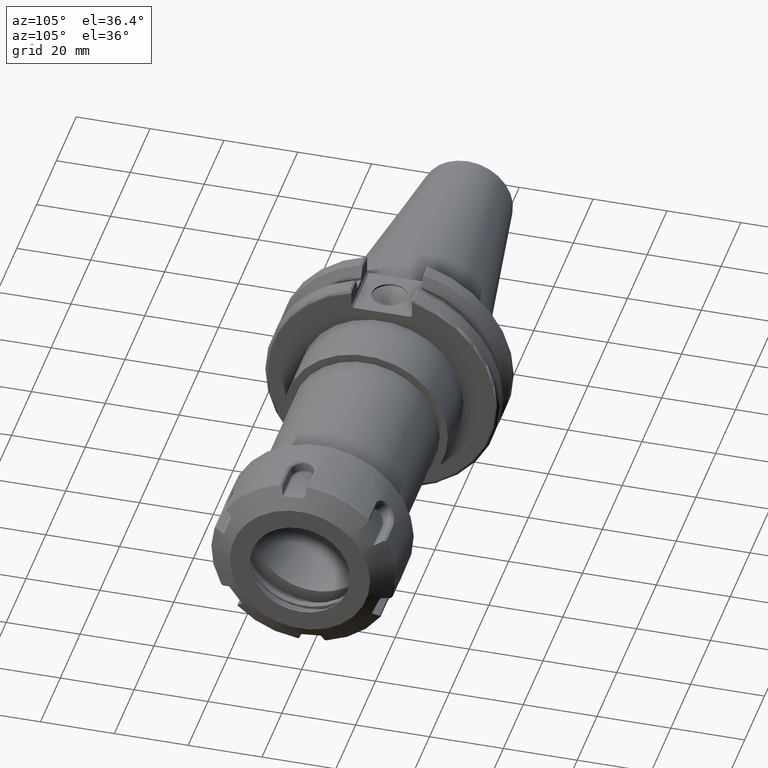
[diagram: clean part render]
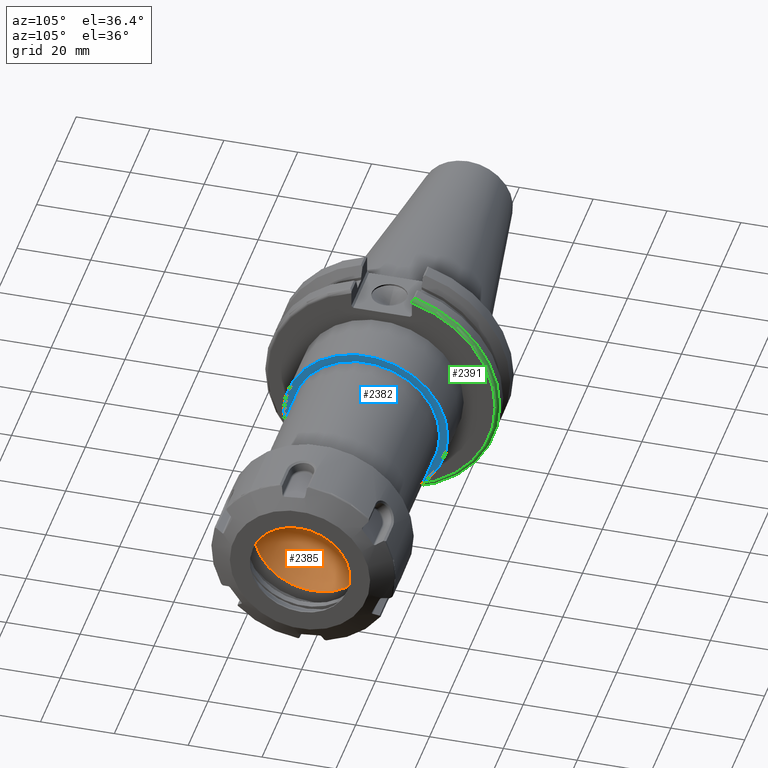
[diagram: same view with three faces highlighted in distinct colors, each labeled with its STEP entity id]
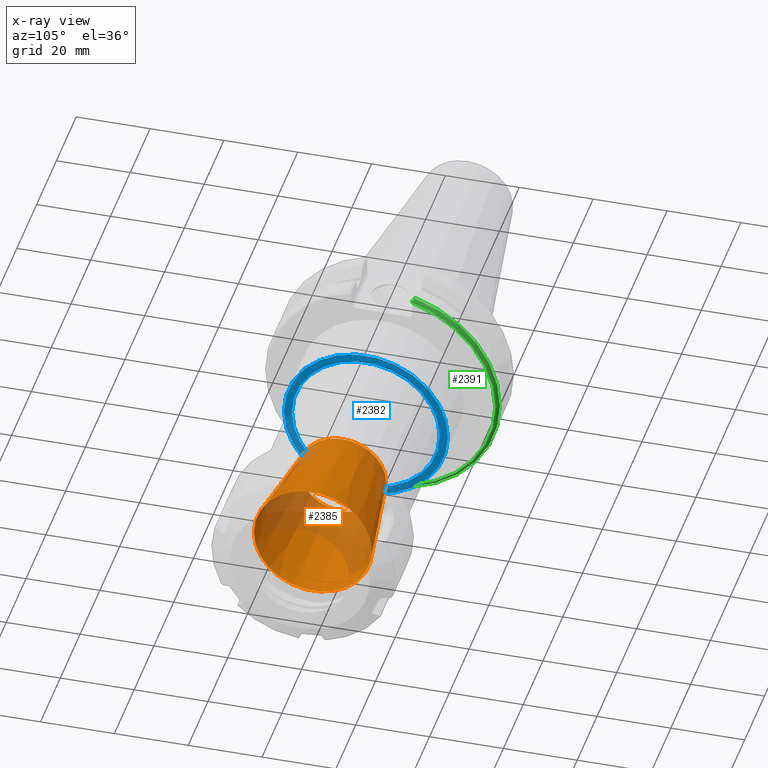
[diagram: x-ray of the same camera — body ghosted, the three highlighted faces saturated]
A machine part, auxiliary view with three faces highlighted in distinct colors.
The next image is the same camera in x-ray (body ghosted, the three faces saturated) — at least one of them is partly hidden behind the body in this view.
Their STEP definitions:

[orange] entity #2385 — the highlighted conical surface has half-angle 8 deg.
#352=FACE_OUTER_BOUND('',#497,.T.);
#497=EDGE_LOOP('',(#1669,#1670,#1671,#1672));
#650=LINE('',#3525,#804);
#804=VECTOR('',#2886,13.875);
#962=CIRCLE('',#2612,16.);
#963=CIRCLE('',#2614,11.75);
#1067=VERTEX_POINT('',#3521);
#1068=VERTEX_POINT('',#3524);
#1300=EDGE_CURVE('',#1067,#1067,#962,.T.);
#1301=EDGE_CURVE('',#1067,#1068,#650,.T.);
#1302=EDGE_CURVE('',#1068,#1068,#963,.T.);
#1669=ORIENTED_EDGE('',*,*,#1300,.T.);
#1670=ORIENTED_EDGE('',*,*,#1301,.T.);
#1671=ORIENTED_EDGE('',*,*,#1302,.F.);
#1672=ORIENTED_EDGE('',*,*,#1301,.F.);
#2358=CONICAL_SURFACE('',#2613,13.875,0.139626340159547);
#2385=ADVANCED_FACE('',(#352),#2358,.F.);
#2612=AXIS2_PLACEMENT_3D('',#3522,#2882,#2883);
#2613=AXIS2_PLACEMENT_3D('',#3523,#2884,#2885);
#2614=AXIS2_PLACEMENT_3D('',#3526,#2887,#2888);
#2882=DIRECTION('center_axis',(1.,0.,0.));
#2883=DIRECTION('ref_axis',(0.,0.,-1.));
#2884=DIRECTION('center_axis',(1.,0.,0.));
#2885=DIRECTION('ref_axis',(0.,1.,0.));
#2886=DIRECTION('',(-0.99026806874157,0.139173100960066,1.70437892618156E-17));
#2887=DIRECTION('center_axis',(1.,0.,0.));
#2888=DIRECTION('ref_axis',(0.,0.,-1.));
#3521=CARTESIAN_POINT('',(88.6,-16.,-1.95943487863577E-15));
#3522=CARTESIAN_POINT('Origin',(88.6,0.,0.));
#3523=CARTESIAN_POINT('Origin',(73.4798393399336,0.,0.));
#3524=CARTESIAN_POINT('',(58.3596786798672,-11.75,-1.43895998899814E-15));
#3525=CARTESIAN_POINT('',(73.4798393399336,-13.875,-1.69919743381695E-15));
#3526=CARTESIAN_POINT('Origin',(58.3596786798672,0.,0.));

[blue] entity #2382 — the highlighted planar face has unit normal (1, 0, 0).
#234=FACE_BOUND('',#493,.T.);
#248=PLANE('',#2607);
#349=FACE_OUTER_BOUND('',#492,.T.);
#492=EDGE_LOOP('',(#1661));
#493=EDGE_LOOP('',(#1662));
#958=CIRCLE('',#2605,22.225);
#960=CIRCLE('',#2608,20.);
#1063=VERTEX_POINT('',#3508);
#1065=VERTEX_POINT('',#3514);
#1294=EDGE_CURVE('',#1063,#1063,#958,.T.);
#1297=EDGE_CURVE('',#1065,#1065,#960,.T.);
#1661=ORIENTED_EDGE('',*,*,#1294,.T.);
#1662=ORIENTED_EDGE('',*,*,#1297,.F.);
#2382=ADVANCED_FACE('',(#349,#234),#248,.T.);
#2605=AXIS2_PLACEMENT_3D('',#3509,#2866,#2867);
#2607=AXIS2_PLACEMENT_3D('',#3513,#2871,#2872);
#2608=AXIS2_PLACEMENT_3D('',#3515,#2873,#2874);
#2866=DIRECTION('center_axis',(1.,0.,0.));
#2867=DIRECTION('ref_axis',(0.,0.,-1.));
#2871=DIRECTION('center_axis',(1.,0.,0.));
#2872=DIRECTION('ref_axis',(0.,0.,-1.));
#2873=DIRECTION('center_axis',(1.,0.,0.));
#2874=DIRECTION('ref_axis',(0.,0.,-1.));
#3508=CARTESIAN_POINT('',(35.,-22.225,-2.72177751110499E-15));
#3509=CARTESIAN_POINT('Origin',(35.,0.,0.));
#3513=CARTESIAN_POINT('Origin',(35.,20.,0.));
#3514=CARTESIAN_POINT('',(35.,-20.,-2.44929359829471E-15));
#3515=CARTESIAN_POINT('Origin',(35.,0.,0.));

[green] entity #2391 — the highlighted toroidal blend (fillet) surface has major radius 30.75 mm and minor (blend) radius 1 mm.
#139=B_SPLINE_CURVE_WITH_KNOTS('',3,(#3572,#3573,#3574,#3575,#3576,#3577),
 .UNSPECIFIED.,.F.,.F.,(4,2,4),(0.0977210450333157,0.111963554372601,0.150804064902975),
 .UNSPECIFIED.);
#140=B_SPLINE_CURVE_WITH_KNOTS('',3,(#3581,#3582,#3583,#3584,#3585,#3586),
 .UNSPECIFIED.,.F.,.F.,(4,2,4),(0.452741154494498,0.491581665024872,0.505824174364157),
 .UNSPECIFIED.);
#141=B_SPLINE_CURVE_WITH_KNOTS('',3,(#3588,#3589,#3590,#3591,#3592,#3593,
#3594,#3595),.UNSPECIFIED.,.F.,.F.,(4,2,2,4),(-0.104180282751876,-0.0729784742461443,
-0.0343524753874979,0.),.UNSPECIFIED.);
#142=B_SPLINE_CURVE_WITH_KNOTS('',3,(#3598,#3599,#3600,#3601,#3602,#3603,
#3604,#3605),.UNSPECIFIED.,.F.,.F.,(4,2,2,4),(0.,0.0343524753874976,0.0729784742461442,
0.104180282751876),.UNSPECIFIED.);
#216=TOROIDAL_SURFACE('',#2628,30.75,1.);
#358=FACE_OUTER_BOUND('',#505,.T.);
#505=EDGE_LOOP('',(#1702,#1703,#1704,#1705,#1706,#1707));
#972=CIRCLE('',#2629,30.75);
#973=CIRCLE('',#2630,31.75);
#1086=VERTEX_POINT('',#3570);
#1087=VERTEX_POINT('',#3571);
#1088=VERTEX_POINT('',#3578);
#1089=VERTEX_POINT('',#3580);
#1090=VERTEX_POINT('',#3587);
#1091=VERTEX_POINT('',#3596);
#1323=EDGE_CURVE('',#1086,#1087,#139,.T.);
#1324=EDGE_CURVE('',#1087,#1088,#972,.T.);
#1325=EDGE_CURVE('',#1088,#1089,#140,.T.);
#1326=EDGE_CURVE('',#1089,#1090,#141,.T.);
#1327=EDGE_CURVE('',#1090,#1091,#973,.T.);
#1328=EDGE_CURVE('',#1091,#1086,#142,.T.);
#1702=ORIENTED_EDGE('',*,*,#1323,.T.);
#1703=ORIENTED_EDGE('',*,*,#1324,.T.);
#1704=ORIENTED_EDGE('',*,*,#1325,.T.);
#1705=ORIENTED_EDGE('',*,*,#1326,.T.);
#1706=ORIENTED_EDGE('',*,*,#1327,.T.);
#1707=ORIENTED_EDGE('',*,*,#1328,.T.);
#2391=ADVANCED_FACE('',(#358),#216,.T.);
#2628=AXIS2_PLACEMENT_3D('',#3569,#2927,#2928);
#2629=AXIS2_PLACEMENT_3D('',#3579,#2929,#2930);
#2630=AXIS2_PLACEMENT_3D('',#3597,#2931,#2932);
#2927=DIRECTION('center_axis',(1.,0.,0.));
#2928=DIRECTION('ref_axis',(0.,0.,-1.));
#2929=DIRECTION('center_axis',(-1.,0.,0.));
#2930=DIRECTION('ref_axis',(0.,1.,-6.12323399573677E-17));
#2931=DIRECTION('center_axis',(1.,0.,0.));
#2932=DIRECTION('ref_axis',(0.,1.,-6.12323399573676E-17));
#3569=CARTESIAN_POINT('Origin',(18.05,0.,0.));
#3570=CARTESIAN_POINT('',(18.9058722749097,8.19,30.1755016258903));
#3571=CARTESIAN_POINT('',(19.05,8.19,29.6392712461019));
#3572=CARTESIAN_POINT('Ctrl Pts',(18.9058722749097,8.19,30.1755016258903));
#3573=CARTESIAN_POINT('Ctrl Pts',(18.9318163728133,8.19,30.131014531546));
#3574=CARTESIAN_POINT('Ctrl Pts',(18.9539643471756,8.19,30.0852355256475));
#3575=CARTESIAN_POINT('Ctrl Pts',(19.020485567083,8.19,29.9212724384851));
#3576=CARTESIAN_POINT('Ctrl Pts',(19.05,8.19,29.7687396145364));
#3577=CARTESIAN_POINT('Ctrl Pts',(19.05,8.19,29.6392712461019));
#3578=CARTESIAN_POINT('',(19.05,8.19,-29.6392712461019));
#3579=CARTESIAN_POINT('Origin',(19.05,0.,0.));
#3580=CARTESIAN_POINT('',(18.9058722749097,8.19,-30.1755016258903));
#3581=CARTESIAN_POINT('Ctrl Pts',(19.05,8.19,-29.6392712461019));
#3582=CARTESIAN_POINT('Ctrl Pts',(19.05,8.19,-29.7687396145364));
#3583=CARTESIAN_POINT('Ctrl Pts',(19.020485567083,8.19,-29.9212724384851));
#3584=CARTESIAN_POINT('Ctrl Pts',(18.9539643471756,8.19,-30.0852355256475));
#3585=CARTESIAN_POINT('Ctrl Pts',(18.9318163728133,8.19,-30.131014531546));
#3586=CARTESIAN_POINT('Ctrl Pts',(18.9058722749097,8.19,-30.1755016258903));
#3587=CARTESIAN_POINT('',(18.05,8.67204822802685,-30.5427254764662));
#3588=CARTESIAN_POINT('Ctrl Pts',(18.9058722749097,8.19,-30.1755016258903));
#3589=CARTESIAN_POINT('Ctrl Pts',(18.8574463042989,8.2703682833078,-30.2367261024977));
#3590=CARTESIAN_POINT('Ctrl Pts',(18.7926702662319,8.34909446036477,-30.2966996242308));
#3591=CARTESIAN_POINT('Ctrl Pts',(18.6396724190507,8.48862804755883,-30.4029961692546));
#3592=CARTESIAN_POINT('Ctrl Pts',(18.5184414294771,8.56482138642532,-30.4610401774263));
#3593=CARTESIAN_POINT('Ctrl Pts',(18.2983170433775,8.6471881193939,-30.5237870709558));
#3594=CARTESIAN_POINT('Ctrl Pts',(18.1645082512917,8.67204822802685,-30.5427254764662));
#3595=CARTESIAN_POINT('Ctrl Pts',(18.05,8.67204822802685,-30.5427254764662));
#3596=CARTESIAN_POINT('',(18.05,8.67204822802685,30.5427254764662));
#3597=CARTESIAN_POINT('Origin',(18.05,0.,0.));
#3598=CARTESIAN_POINT('Ctrl Pts',(18.05,8.67204822802686,30.5427254764662));
#3599=CARTESIAN_POINT('Ctrl Pts',(18.1645082512917,8.67204822802686,30.5427254764662));
#3600=CARTESIAN_POINT('Ctrl Pts',(18.2983170433775,8.6471881193939,30.5237870709558));
#3601=CARTESIAN_POINT('Ctrl Pts',(18.5184414294771,8.56482138642532,30.4610401774263));
#3602=CARTESIAN_POINT('Ctrl Pts',(18.6396724190507,8.48862804755883,30.4029961692546));
#3603=CARTESIAN_POINT('Ctrl Pts',(18.7926702662319,8.34909446036477,30.2966996242308));
#3604=CARTESIAN_POINT('Ctrl Pts',(18.8574463042989,8.2703682833078,30.2367261024977));
#3605=CARTESIAN_POINT('Ctrl Pts',(18.9058722749097,8.19,30.1755016258903));